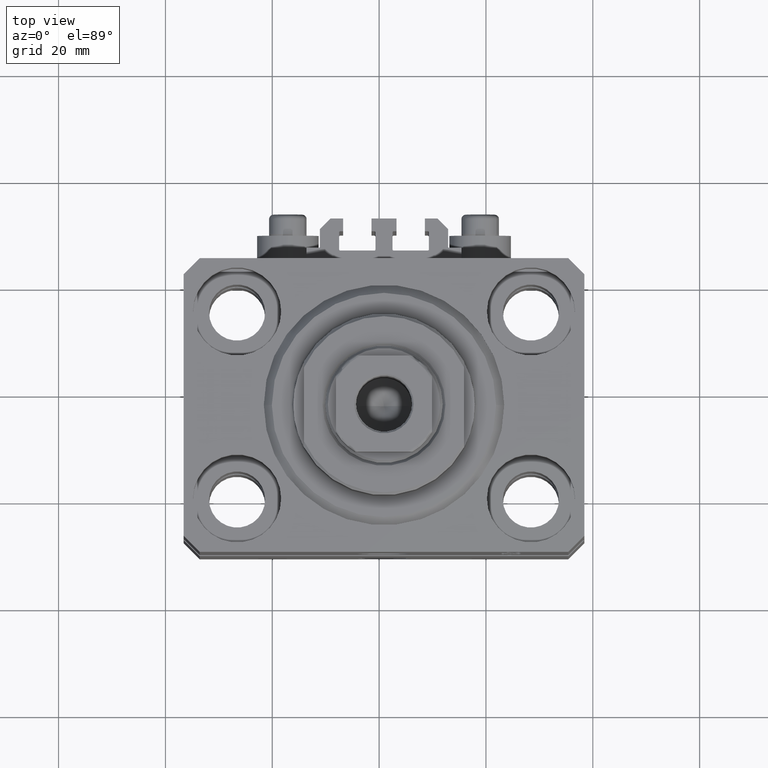
[diagram: clean part render]
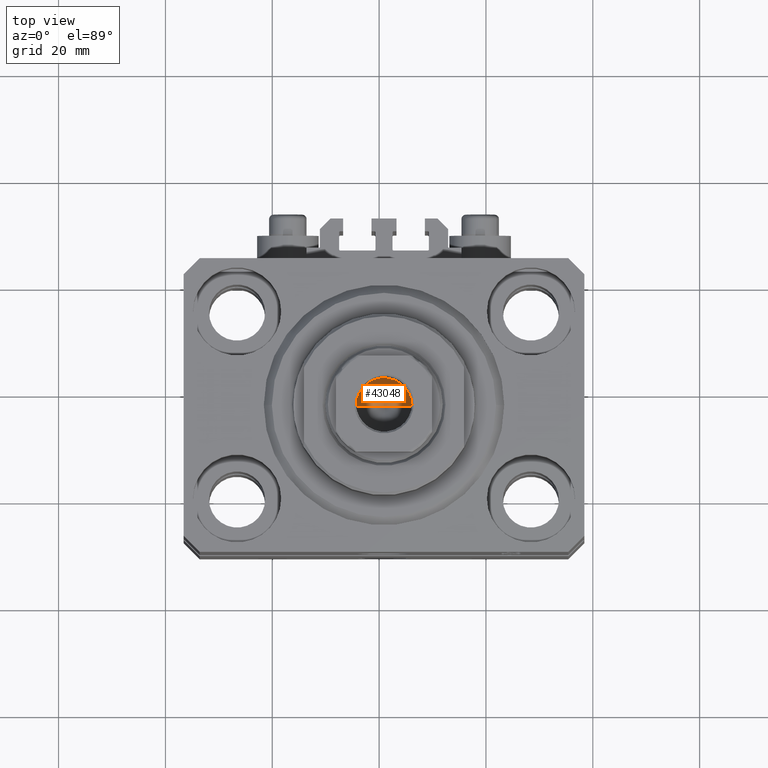
[diagram: same view with one face highlighted and labeled with its STEP entity id]
A machine part, top view. The second image highlights one B-rep face of the part: STEP entity #43048.
In plain terms, the highlighted conical surface has half-angle 59 deg.
Its self-contained STEP definition (entity closure, byte-faithful):
#52 = LINE ( 'NONE', #43389, #26915 ) ;
#545 = CARTESIAN_POINT ( 'NONE',  ( 0.000000000000000000, 0.000000000000000000, 60.10000000000000853 ) ) ;
#5312 = CIRCLE ( 'NONE', #46628, 5.249999999999994671 ) ;
#5361 = EDGE_LOOP ( 'NONE', ( #10884, #7363, #17715 ) ) ;
#7363 = ORIENTED_EDGE ( 'NONE', *, *, #44060, .T. ) ;
#7497 = FACE_OUTER_BOUND ( 'NONE', #5361, .T. ) ;
#7785 = LINE ( 'NONE', #25735, #29140 ) ;
#10884 = ORIENTED_EDGE ( 'NONE', *, *, #46469, .F. ) ;
#15356 = AXIS2_PLACEMENT_3D ( 'NONE', #545, #15385, #29295 ) ;
#15385 = DIRECTION ( 'NONE',  ( -0.000000000000000000, -0.000000000000000000, 1.000000000000000000 ) ) ;
#17525 = VERTEX_POINT ( 'NONE', #29998 ) ;
#17715 = ORIENTED_EDGE ( 'NONE', *, *, #36422, .T. ) ;
#17884 = CARTESIAN_POINT ( 'NONE',  ( 0.000000000000000000, 0.000000000000000000, 60.10000000000000853 ) ) ;
#18722 = DIRECTION ( 'NONE',  ( -0.8571673007021118895, 1.049727191138618079E-16, 0.5150380749100549327 ) ) ;
#19936 = CONICAL_SURFACE ( 'NONE', #15356, 5.249999999999994671, 1.029744258676653645 ) ;
#21441 = DIRECTION ( 'NONE',  ( 0.8571673007021118895, 0.000000000000000000, 0.5150380749100549327 ) ) ;
#22966 = VERTEX_POINT ( 'NONE', #38404 ) ;
#25735 = CARTESIAN_POINT ( 'NONE',  ( 5.249999999999994671, 0.000000000000000000, 60.10000000000000853 ) ) ;
#26915 = VECTOR ( 'NONE', #18722, 1000.000000000000000 ) ;
#29140 = VECTOR ( 'NONE', #21441, 1000.000000000000000 ) ;
#29295 = DIRECTION ( 'NONE',  ( 1.000000000000000000, 0.000000000000000000, 0.000000000000000000 ) ) ;
#29998 = CARTESIAN_POINT ( 'NONE',  ( 5.249999999999994671, 0.000000000000000000, 60.10000000000000853 ) ) ;
#35977 = CARTESIAN_POINT ( 'NONE',  ( -5.249999999999994671, 6.429395695523597250E-16, 60.10000000000000853 ) ) ;
#36422 = EDGE_CURVE ( 'NONE', #17525, #41140, #5312, .T. ) ;
#38404 = CARTESIAN_POINT ( 'NONE',  ( -6.783656367213677939E-15, 0.000000000000000000, 56.94548175010531565 ) ) ;
#41140 = VERTEX_POINT ( 'NONE', #35977 ) ;
#43048 = ADVANCED_FACE ( 'NONE', ( #7497 ), #19936, .F. ) ;
#43389 = CARTESIAN_POINT ( 'NONE',  ( -5.249999999999994671, 6.429395695523597250E-16, 60.10000000000000853 ) ) ;
#44060 = EDGE_CURVE ( 'NONE', #22966, #17525, #7785, .T. ) ;
#46469 = EDGE_CURVE ( 'NONE', #22966, #41140, #52, .T. ) ;
#46628 = AXIS2_PLACEMENT_3D ( 'NONE', #17884, #47089, #47326 ) ;
#47089 = DIRECTION ( 'NONE',  ( -0.000000000000000000, -0.000000000000000000, 1.000000000000000000 ) ) ;
#47326 = DIRECTION ( 'NONE',  ( 1.000000000000000000, 0.000000000000000000, 0.000000000000000000 ) ) ;